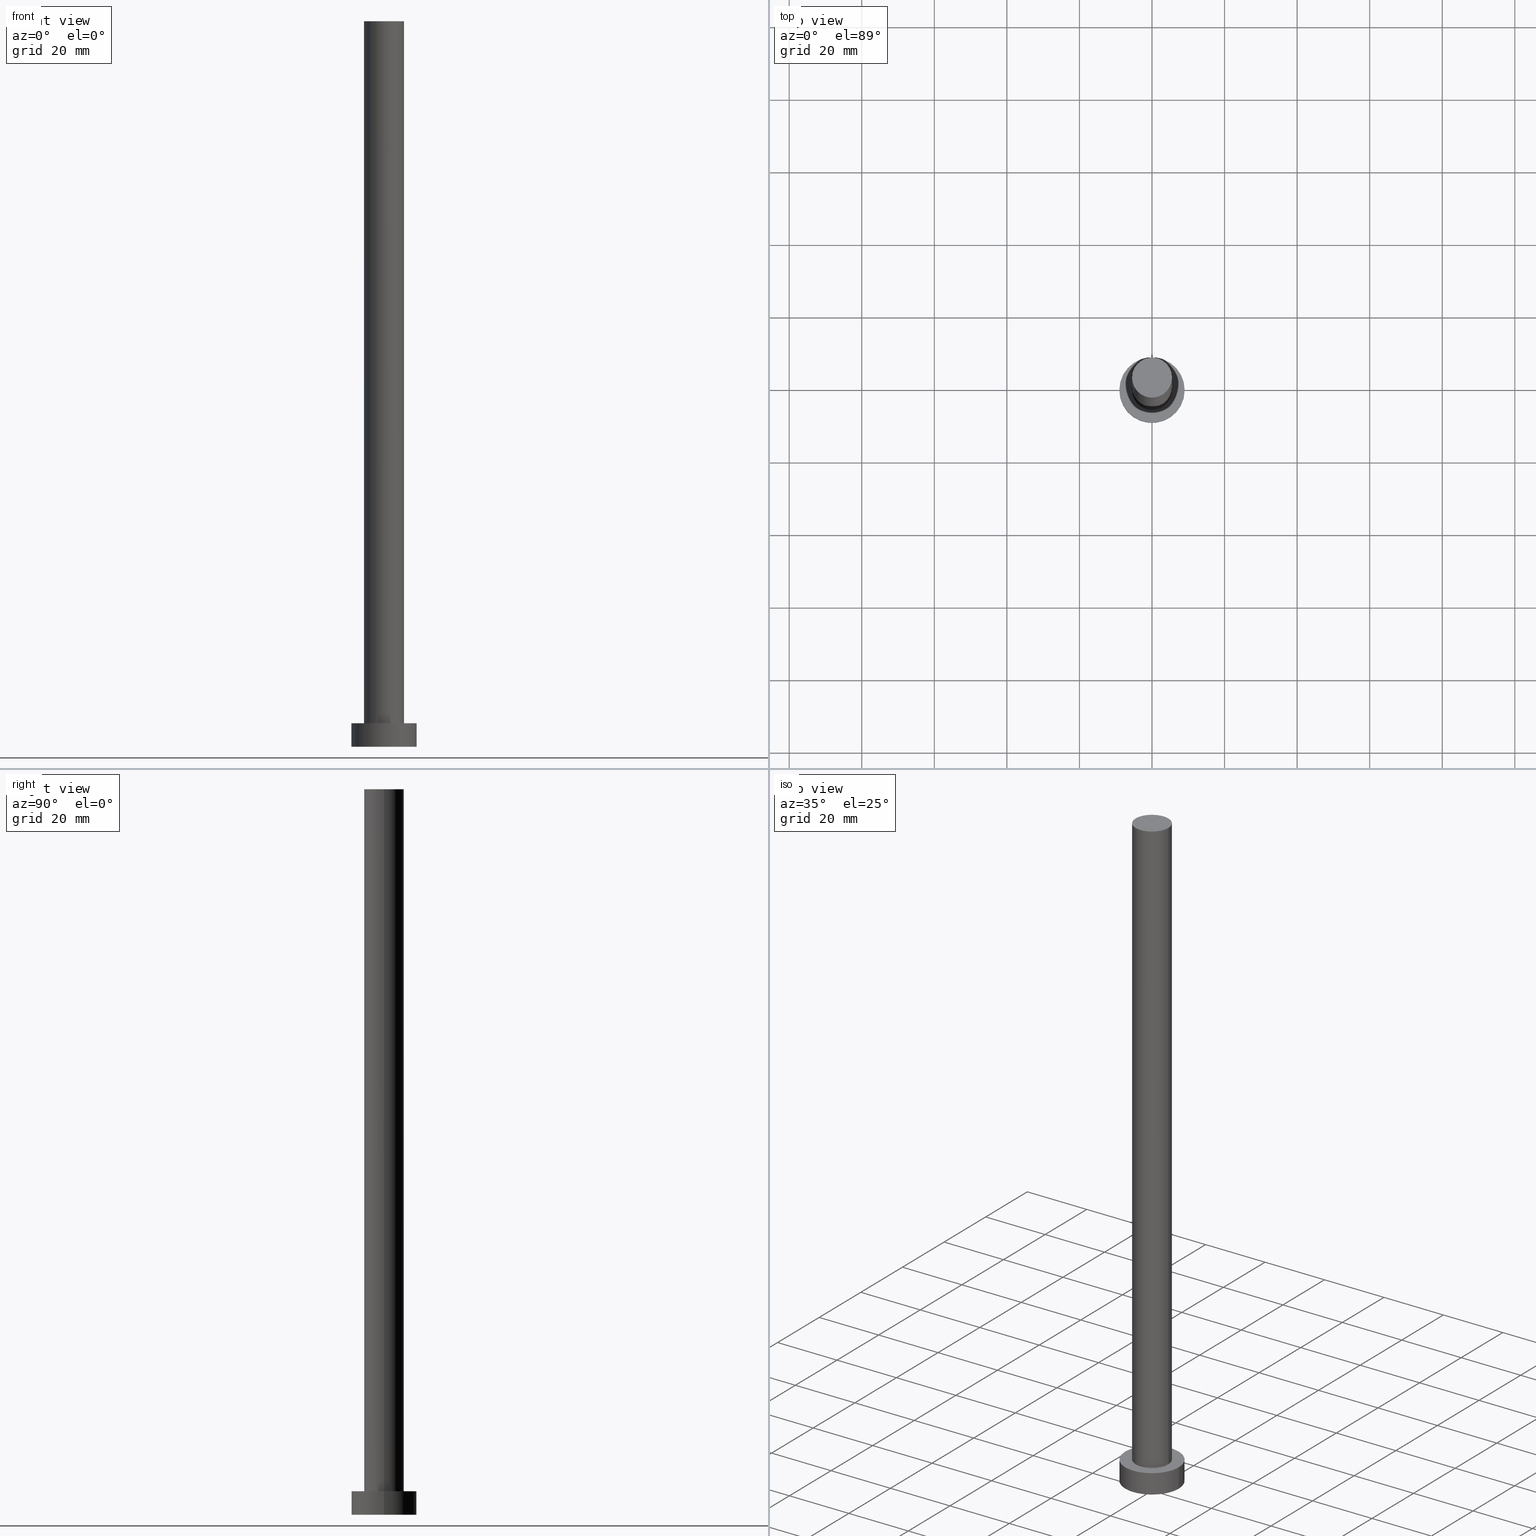
[diagram: canonical four-view strip — front | top / right | iso, engineering-drawing reading convention]
A machine part, canonical four-view strip (front | top / right | iso — engineering-drawing reading convention). The complete STEP part file that produces these views, byte-faithful:
ISO-10303-21;
HEADER;
FILE_DESCRIPTION (( 'STEP AP203' ),
    '1' );
FILE_NAME ('eee9.STEP',
    '2023-02-13T12:20:11',
    ( '' ),
    ( '' ),
    'SwSTEP 2.0',
    'SolidWorks 2019',
    '' );
FILE_SCHEMA (( 'CONFIG_CONTROL_DESIGN' ));
ENDSEC;

DATA;
#1 = DIRECTION ( 'NONE',  ( 0.000000000000000000, 0.000000000000000000, 1.000000000000000000 ) ) ;
#2 = DIRECTION ( 'NONE',  ( 1.000000000000000000, 0.000000000000000000, 0.000000000000000000 ) ) ;
#3 = DIRECTION ( 'NONE',  ( 0.000000000000000000, 0.000000000000000000, 1.000000000000000000 ) ) ;
#4 = AXIS2_PLACEMENT_3D ( 'NONE', #65, #107, #219 ) ;
#5 = DIRECTION ( 'NONE',  ( 0.000000000000000000, 0.000000000000000000, 1.000000000000000000 ) ) ;
#6 = ORIENTED_EDGE ( 'NONE', *, *, #152, .T. ) ;
#7 = ORIENTED_EDGE ( 'NONE', *, *, #56, .T. ) ;
#8 = APPROVAL_DATE_TIME ( #91, #182 ) ;
#9 = ORIENTED_EDGE ( 'NONE', *, *, #218, .F. ) ;
#10 = DIRECTION ( 'NONE',  ( -0.000000000000000000, -0.000000000000000000, -1.000000000000000000 ) ) ;
#11 = PRODUCT_RELATED_PRODUCT_CATEGORY ( 'detail', '', ( #168 ) ) ;
#12 = APPLICATION_CONTEXT ( 'configuration controlled 3d designs of mechanical parts and assemblies' ) ;
#13 = DATE_AND_TIME ( #97, #94 ) ;
#14 = ORIENTED_EDGE ( 'NONE', *, *, #218, .T. ) ;
#15 = DATE_AND_TIME ( #169, #45 ) ;
#16 = DIRECTION ( 'NONE',  ( -1.000000000000000000, 0.000000000000000000, 0.000000000000000000 ) ) ;
#17 = CARTESIAN_POINT ( 'NONE',  ( 0.000000000000000000, 0.000000000000000000, 200.0000000000000000 ) ) ;
#18 = APPROVAL_PERSON_ORGANIZATION ( #247, #182, #204 ) ;
#19 = CARTESIAN_POINT ( 'NONE',  ( 0.000000000000000000, 0.000000000000000000, 6.500000000000000000 ) ) ;
#20 = EDGE_CURVE ( 'NONE', #165, #248, #246, .T. ) ;
#21 = CARTESIAN_POINT ( 'NONE',  ( -5.500000000000000000, 0.000000000000000000, 200.0000000000000000 ) ) ;
#22 = CC_DESIGN_DATE_AND_TIME_ASSIGNMENT ( #95, #252, ( #244 ) ) ;
#23 = APPROVAL_STATUS ( 'not_yet_approved' ) ;
#24 = EDGE_LOOP ( 'NONE', ( #142, #62, #144, #235 ) ) ;
#25 = ORIENTED_EDGE ( 'NONE', *, *, #51, .F. ) ;
#26 = APPROVAL_PERSON_ORGANIZATION ( #148, #104, #149 ) ;
#27 = DIRECTION ( 'NONE',  ( 1.000000000000000000, 0.000000000000000000, 0.000000000000000000 ) ) ;
#28 = VERTEX_POINT ( 'NONE', #70 ) ;
#29 = CC_DESIGN_PERSON_AND_ORGANIZATION_ASSIGNMENT ( #55, #187, ( #244 ) ) ;
#30 = ORIENTED_EDGE ( 'NONE', *, *, #166, .T. ) ;
#31 = CARTESIAN_POINT ( 'NONE',  ( 0.000000000000000000, 0.000000000000000000, 0.000000000000000000 ) ) ;
#32 = EDGE_CURVE ( 'NONE', #93, #206, #106, .T. ) ;
#33 = FACE_OUTER_BOUND ( 'NONE', #87, .T. ) ;
#34 = DESIGN_CONTEXT ( 'detailed design', #12, 'design' ) ;
#35 = AXIS2_PLACEMENT_3D ( 'NONE', #120, #84, #2 ) ;
#36 = APPROVAL_PERSON_ORGANIZATION ( #57, #196, #74 ) ;
#37 = ADVANCED_FACE ( 'NONE', ( #129 ), #208, .F. ) ;
#38 =( NAMED_UNIT ( * ) SI_UNIT ( $, .STERADIAN. ) SOLID_ANGLE_UNIT ( ) );
#39 = CC_DESIGN_PERSON_AND_ORGANIZATION_ASSIGNMENT ( #118, #171, ( #255 ) ) ;
#40 = DIRECTION ( 'NONE',  ( 1.000000000000000000, 0.000000000000000000, -0.000000000000000000 ) ) ;
#41 = CIRCLE ( 'NONE', #211, 5.500000000000000000 ) ;
#42 = LINE ( 'NONE', #21, #215 ) ;
#43 = CYLINDRICAL_SURFACE ( 'NONE', #115, 5.500000000000000000 ) ;
#44 = FACE_OUTER_BOUND ( 'NONE', #163, .T. ) ;
#45 = LOCAL_TIME ( 13, 20, 11.00000000000000000, #133 ) ;
#46 = APPLICATION_PROTOCOL_DEFINITION ( 'international standard', 'config_control_design', 1994, #12 ) ;
#47 = CIRCLE ( 'NONE', #243, 9.000000000000000000 ) ;
#48 = ORIENTED_EDGE ( 'NONE', *, *, #32, .F. ) ;
#49 = AXIS2_PLACEMENT_3D ( 'NONE', #19, #176, #64 ) ;
#50 = DIRECTION ( 'NONE',  ( 1.000000000000000000, 0.000000000000000000, 0.000000000000000000 ) ) ;
#51 = EDGE_CURVE ( 'NONE', #93, #242, #150, .T. ) ;
#52 = APPROVAL_STATUS ( 'not_yet_approved' ) ;
#53 = AXIS2_PLACEMENT_3D ( 'NONE', #143, #222, #27 ) ;
#54 = DIRECTION ( 'NONE',  ( -0.000000000000000000, -0.000000000000000000, -1.000000000000000000 ) ) ;
#55 = PERSON_AND_ORGANIZATION ( #180, #205 ) ;
#56 = EDGE_CURVE ( 'NONE', #242, #28, #47, .T. ) ;
#57 = PERSON_AND_ORGANIZATION ( #180, #205 ) ;
#58 = CARTESIAN_POINT ( 'NONE',  ( 0.000000000000000000, 0.000000000000000000, 6.500000000000000000 ) ) ;
#59 = LOCAL_TIME ( 13, 20, 11.00000000000000000, #125 ) ;
#60 =( LENGTH_UNIT ( ) NAMED_UNIT ( * ) SI_UNIT ( .MILLI., .METRE. ) );
#61 = CARTESIAN_POINT ( 'NONE',  ( 5.500000000000000000, 6.735557395310442023E-16, 6.500000000000000000 ) ) ;
#62 = ORIENTED_EDGE ( 'NONE', *, *, #132, .F. ) ;
#63 = CLOSED_SHELL ( 'NONE', ( #201, #77, #225, #250, #37, #157, #88 ) ) ;
#64 = DIRECTION ( 'NONE',  ( -1.000000000000000000, 0.000000000000000000, 0.000000000000000000 ) ) ;
#65 = CARTESIAN_POINT ( 'NONE',  ( 0.000000000000000000, 0.000000000000000000, 0.000000000000000000 ) ) ;
#66 = VERTEX_POINT ( 'NONE', #99 ) ;
#67 = CARTESIAN_POINT ( 'NONE',  ( 9.000000000000000000, 1.102182119232617517E-15, 6.500000000000000000 ) ) ;
#68 = PERSON_AND_ORGANIZATION_ROLE ( 'creator' ) ;
#69 = EDGE_CURVE ( 'NONE', #206, #93, #188, .T. ) ;
#70 = CARTESIAN_POINT ( 'NONE',  ( 9.000000000000000000, 1.102182119232617517E-15, 0.000000000000000000 ) ) ;
#71 = APPLICATION_CONTEXT ( 'configuration controlled 3d designs of mechanical parts and assemblies' ) ;
#72 = CC_DESIGN_APPROVAL ( #196, ( #244 ) ) ;
#73 = ORIENTED_EDGE ( 'NONE', *, *, #69, .F. ) ;
#74 = APPROVAL_ROLE ( '' ) ;
#75 = AXIS2_PLACEMENT_3D ( 'NONE', #233, #236, #137 ) ;
#76 = DIRECTION ( 'NONE',  ( 0.000000000000000000, 0.000000000000000000, 1.000000000000000000 ) ) ;
#77 = ADVANCED_FACE ( 'NONE', ( #191 ), #119, .T. ) ;
#78 = SHAPE_DEFINITION_REPRESENTATION ( #178, #209 ) ;
#79 = AXIS2_PLACEMENT_3D ( 'NONE', #81, #5, #40 ) ;
#80 = DIRECTION ( 'NONE',  ( -0.000000000000000000, -0.000000000000000000, -1.000000000000000000 ) ) ;
#81 = CARTESIAN_POINT ( 'NONE',  ( 0.000000000000000000, 0.000000000000000000, 200.0000000000000000 ) ) ;
#82 = PLANE ( 'NONE',  #75 ) ;
#83 = AXIS2_PLACEMENT_3D ( 'NONE', #228, #54, #16 ) ;
#84 = DIRECTION ( 'NONE',  ( 0.000000000000000000, 0.000000000000000000, 1.000000000000000000 ) ) ;
#85 = CC_DESIGN_APPROVAL ( #182, ( #110 ) ) ;
#86 = DIRECTION ( 'NONE',  ( -1.000000000000000000, 0.000000000000000000, 0.000000000000000000 ) ) ;
#87 = EDGE_LOOP ( 'NONE', ( #202, #6 ) ) ;
#88 = ADVANCED_FACE ( 'NONE', ( #33 ), #177, .T. ) ;
#89 = PERSON_AND_ORGANIZATION ( #180, #205 ) ;
#90 = ORIENTED_EDGE ( 'NONE', *, *, #51, .T. ) ;
#91 = DATE_AND_TIME ( #241, #59 ) ;
#92 = CARTESIAN_POINT ( 'NONE',  ( 0.000000000000000000, 0.000000000000000000, 6.500000000000000000 ) ) ;
#93 = VERTEX_POINT ( 'NONE', #105 ) ;
#94 = LOCAL_TIME ( 13, 20, 11.00000000000000000, #226 ) ;
#95 = DATE_AND_TIME ( #114, #131 ) ;
#96 = DIRECTION ( 'NONE',  ( 0.000000000000000000, 0.000000000000000000, 1.000000000000000000 ) ) ;
#97 = CALENDAR_DATE ( 2023, 13, 2 ) ;
#98 = DIRECTION ( 'NONE',  ( 1.000000000000000000, 0.000000000000000000, 0.000000000000000000 ) ) ;
#99 = CARTESIAN_POINT ( 'NONE',  ( -5.500000000000000000, 0.000000000000000000, 200.0000000000000000 ) ) ;
#100 = VECTOR ( 'NONE', #103, 1000.000000000000000 ) ;
#101 = CIRCLE ( 'NONE', #4, 9.000000000000000000 ) ;
#102 = PERSON_AND_ORGANIZATION_ROLE ( 'creator' ) ;
#103 = DIRECTION ( 'NONE',  ( -0.000000000000000000, -0.000000000000000000, -1.000000000000000000 ) ) ;
#104 = APPROVAL ( #52, 'NEUR�EN�' ) ;
#105 = CARTESIAN_POINT ( 'NONE',  ( -9.000000000000000000, 0.000000000000000000, 6.500000000000000000 ) ) ;
#106 = CIRCLE ( 'NONE', #109, 9.000000000000000000 ) ;
#107 = DIRECTION ( 'NONE',  ( 0.000000000000000000, 0.000000000000000000, 1.000000000000000000 ) ) ;
#108 = DIRECTION ( 'NONE',  ( 0.000000000000000000, 0.000000000000000000, 1.000000000000000000 ) ) ;
#109 = AXIS2_PLACEMENT_3D ( 'NONE', #92, #251, #50 ) ;
#110 = PRODUCT_DEFINITION ( 'NEZN�M�', '', #255, #34 ) ;
#111 = EDGE_LOOP ( 'NONE', ( #223, #48, #90, #7 ) ) ;
#112 = ORIENTED_EDGE ( 'NONE', *, *, #69, .T. ) ;
#113 = CC_DESIGN_PERSON_AND_ORGANIZATION_ASSIGNMENT ( #231, #102, ( #255 ) ) ;
#114 = CALENDAR_DATE ( 2023, 13, 2 ) ;
#115 = AXIS2_PLACEMENT_3D ( 'NONE', #158, #155, #86 ) ;
#116 = ORIENTED_EDGE ( 'NONE', *, *, #238, .F. ) ;
#117 = CIRCLE ( 'NONE', #145, 5.500000000000000000 ) ;
#118 = PERSON_AND_ORGANIZATION ( #180, #205 ) ;
#119 = CYLINDRICAL_SURFACE ( 'NONE', #83, 9.000000000000000000 ) ;
#120 = CARTESIAN_POINT ( 'NONE',  ( 0.000000000000000000, 0.000000000000000000, 200.0000000000000000 ) ) ;
#121 = CARTESIAN_POINT ( 'NONE',  ( 9.000000000000000000, 1.102182119232617517E-15, 6.500000000000000000 ) ) ;
#122 = CIRCLE ( 'NONE', #35, 5.500000000000000000 ) ;
#123 = FACE_OUTER_BOUND ( 'NONE', #111, .T. ) ;
#124 = ORIENTED_EDGE ( 'NONE', *, *, #212, .F. ) ;
#125 = COORDINATED_UNIVERSAL_TIME_OFFSET ( 1, 0, .AHEAD. ) ;
#126 = EDGE_LOOP ( 'NONE', ( #167, #128 ) ) ;
#127 = CIRCLE ( 'NONE', #153, 5.500000000000000000 ) ;
#128 = ORIENTED_EDGE ( 'NONE', *, *, #186, .F. ) ;
#129 = FACE_OUTER_BOUND ( 'NONE', #126, .T. ) ;
#130 = APPROVAL_DATE_TIME ( #15, #196 ) ;
#131 = LOCAL_TIME ( 13, 20, 11.00000000000000000, #253 ) ;
#132 = EDGE_CURVE ( 'NONE', #66, #165, #117, .T. ) ;
#133 = COORDINATED_UNIVERSAL_TIME_OFFSET ( 1, 0, .AHEAD. ) ;
#134 = DIRECTION ( 'NONE',  ( 0.000000000000000000, 0.000000000000000000, 1.000000000000000000 ) ) ;
#135 = DIRECTION ( 'NONE',  ( 1.000000000000000000, 0.000000000000000000, 0.000000000000000000 ) ) ;
#136 = EDGE_LOOP ( 'NONE', ( #183, #112 ) ) ;
#137 = DIRECTION ( 'NONE',  ( 1.000000000000000000, 0.000000000000000000, -0.000000000000000000 ) ) ;
#138 = CARTESIAN_POINT ( 'NONE',  ( 0.000000000000000000, 0.000000000000000000, 200.0000000000000000 ) ) ;
#139 = CYLINDRICAL_SURFACE ( 'NONE', #49, 9.000000000000000000 ) ;
#140 = CC_DESIGN_PERSON_AND_ORGANIZATION_ASSIGNMENT ( #221, #199, ( #168 ) ) ;
#141 = COORDINATED_UNIVERSAL_TIME_OFFSET ( 1, 0, .AHEAD. ) ;
#142 = ORIENTED_EDGE ( 'NONE', *, *, #20, .F. ) ;
#143 = CARTESIAN_POINT ( 'NONE',  ( 0.000000000000000000, 0.000000000000000000, 0.000000000000000000 ) ) ;
#144 = ORIENTED_EDGE ( 'NONE', *, *, #212, .T. ) ;
#145 = AXIS2_PLACEMENT_3D ( 'NONE', #17, #3, #135 ) ;
#146 = CC_DESIGN_APPROVAL ( #104, ( #255 ) ) ;
#147 = ORIENTED_EDGE ( 'NONE', *, *, #152, .F. ) ;
#148 = PERSON_AND_ORGANIZATION ( #180, #205 ) ;
#149 = APPROVAL_ROLE ( '' ) ;
#150 = LINE ( 'NONE', #232, #100 ) ;
#151 = DATE_TIME_ROLE ( 'creation_date' ) ;
#152 = EDGE_CURVE ( 'NONE', #165, #66, #122, .T. ) ;
#153 = AXIS2_PLACEMENT_3D ( 'NONE', #154, #108, #193 ) ;
#154 = CARTESIAN_POINT ( 'NONE',  ( 0.000000000000000000, 0.000000000000000000, 6.500000000000000000 ) ) ;
#155 = DIRECTION ( 'NONE',  ( -0.000000000000000000, -0.000000000000000000, -1.000000000000000000 ) ) ;
#156 = EDGE_LOOP ( 'NONE', ( #116, #9 ) ) ;
#157 = ADVANCED_FACE ( 'NONE', ( #239 ), #43, .T. ) ;
#158 = CARTESIAN_POINT ( 'NONE',  ( 0.000000000000000000, 0.000000000000000000, 200.0000000000000000 ) ) ;
#159 = VECTOR ( 'NONE', #10, 1000.000000000000000 ) ;
#160 =( NAMED_UNIT ( * ) PLANE_ANGLE_UNIT ( ) SI_UNIT ( $, .RADIAN. ) );
#161 = MANIFOLD_SOLID_BREP ( 'P�idat vysunut�m3', #63 ) ;
#162 =( GEOMETRIC_REPRESENTATION_CONTEXT ( 3 ) GLOBAL_UNCERTAINTY_ASSIGNED_CONTEXT ( ( #172 ) ) GLOBAL_UNIT_ASSIGNED_CONTEXT ( ( #60, #160, #38 ) ) REPRESENTATION_CONTEXT ( 'NONE', 'WORKASPACE' ) );
#163 = EDGE_LOOP ( 'NONE', ( #147, #184, #14, #124 ) ) ;
#164 = CALENDAR_DATE ( 2023, 13, 2 ) ;
#165 = VERTEX_POINT ( 'NONE', #214 ) ;
#166 = EDGE_CURVE ( 'NONE', #206, #28, #216, .T. ) ;
#167 = ORIENTED_EDGE ( 'NONE', *, *, #56, .F. ) ;
#168 = PRODUCT ( 'eee9', 'eee9', '', ( #245 ) ) ;
#169 = CALENDAR_DATE ( 2023, 13, 2 ) ;
#170 = SECURITY_CLASSIFICATION_LEVEL ( 'unclassified' ) ;
#171 = PERSON_AND_ORGANIZATION_ROLE ( 'design_supplier' ) ;
#172 = UNCERTAINTY_MEASURE_WITH_UNIT (LENGTH_MEASURE( 1.000000000000000082E-05 ), #60, 'distance_accuracy_value', 'NONE');
#173 = DIRECTION ( 'NONE',  ( -0.000000000000000000, -0.000000000000000000, -1.000000000000000000 ) ) ;
#174 = DIRECTION ( 'NONE',  ( 1.000000000000000000, 0.000000000000000000, 0.000000000000000000 ) ) ;
#175 = FACE_BOUND ( 'NONE', #156, .T. ) ;
#176 = DIRECTION ( 'NONE',  ( -0.000000000000000000, -0.000000000000000000, -1.000000000000000000 ) ) ;
#177 = PLANE ( 'NONE',  #79 ) ;
#178 = PRODUCT_DEFINITION_SHAPE ( 'NONE', 'NONE',  #110 ) ;
#179 = EDGE_LOOP ( 'NONE', ( #73, #30, #200, #25 ) ) ;
#180 = PERSON ( 'NEUR�EN�', 'NEUR�EN�', 'NEUR�EN�', ('NEUR�EN�'), ('NEUR�EN�'), ('NEUR�EN�') ) ;
#181 = CC_DESIGN_SECURITY_CLASSIFICATION ( #244, ( #255 ) ) ;
#182 = APPROVAL ( #23, 'NEUR�EN�' ) ;
#183 = ORIENTED_EDGE ( 'NONE', *, *, #32, .T. ) ;
#184 = ORIENTED_EDGE ( 'NONE', *, *, #20, .T. ) ;
#185 = AXIS2_PLACEMENT_3D ( 'NONE', #58, #134, #98 ) ;
#186 = EDGE_CURVE ( 'NONE', #28, #242, #101, .T. ) ;
#187 = PERSON_AND_ORGANIZATION_ROLE ( 'classification_officer' ) ;
#188 = CIRCLE ( 'NONE', #185, 9.000000000000000000 ) ;
#189 = DIRECTION ( 'NONE',  ( 1.000000000000000000, 0.000000000000000000, -0.000000000000000000 ) ) ;
#190 = CC_DESIGN_PERSON_AND_ORGANIZATION_ASSIGNMENT ( #89, #68, ( #110 ) ) ;
#191 = FACE_OUTER_BOUND ( 'NONE', #179, .T. ) ;
#192 = CC_DESIGN_DATE_AND_TIME_ASSIGNMENT ( #220, #151, ( #110 ) ) ;
#193 = DIRECTION ( 'NONE',  ( 1.000000000000000000, 0.000000000000000000, 0.000000000000000000 ) ) ;
#194 = CARTESIAN_POINT ( 'NONE',  ( 0.000000000000000000, 0.000000000000000000, 6.500000000000000000 ) ) ;
#195 = CARTESIAN_POINT ( 'NONE',  ( -9.000000000000000000, 0.000000000000000000, 0.000000000000000000 ) ) ;
#196 = APPROVAL ( #229, 'NEUR�EN�' ) ;
#197 = LOCAL_TIME ( 13, 20, 11.00000000000000000, #141 ) ;
#198 = FACE_OUTER_BOUND ( 'NONE', #136, .T. ) ;
#199 = PERSON_AND_ORGANIZATION_ROLE ( 'design_owner' ) ;
#200 = ORIENTED_EDGE ( 'NONE', *, *, #186, .T. ) ;
#201 = ADVANCED_FACE ( 'NONE', ( #44 ), #240, .T. ) ;
#202 = ORIENTED_EDGE ( 'NONE', *, *, #132, .T. ) ;
#203 = AXIS2_PLACEMENT_3D ( 'NONE', #31, #96, #189 ) ;
#204 = APPROVAL_ROLE ( '' ) ;
#205 = ORGANIZATION ( 'NEUR�EN�', 'NEUR�EN�', '' ) ;
#206 = VERTEX_POINT ( 'NONE', #67 ) ;
#207 = APPLICATION_PROTOCOL_DEFINITION ( 'international standard', 'config_control_design', 1994, #71 ) ;
#208 = PLANE ( 'NONE',  #203 ) ;
#209 = ADVANCED_BREP_SHAPE_REPRESENTATION ( 'eee9', ( #161, #53 ), #162 ) ;
#210 = DIRECTION ( 'NONE',  ( 1.000000000000000000, 0.000000000000000000, 0.000000000000000000 ) ) ;
#211 = AXIS2_PLACEMENT_3D ( 'NONE', #194, #1, #174 ) ;
#212 = EDGE_CURVE ( 'NONE', #66, #213, #42, .T. ) ;
#213 = VERTEX_POINT ( 'NONE', #217 ) ;
#214 = CARTESIAN_POINT ( 'NONE',  ( 5.500000000000000000, 6.735557395310442023E-16, 200.0000000000000000 ) ) ;
#215 = VECTOR ( 'NONE', #80, 1000.000000000000000 ) ;
#216 = LINE ( 'NONE', #121, #249 ) ;
#217 = CARTESIAN_POINT ( 'NONE',  ( -5.500000000000000000, 0.000000000000000000, 6.500000000000000000 ) ) ;
#218 = EDGE_CURVE ( 'NONE', #248, #213, #41, .T. ) ;
#219 = DIRECTION ( 'NONE',  ( 1.000000000000000000, 0.000000000000000000, 0.000000000000000000 ) ) ;
#220 = DATE_AND_TIME ( #164, #197 ) ;
#221 = PERSON_AND_ORGANIZATION ( #180, #205 ) ;
#222 = DIRECTION ( 'NONE',  ( 0.000000000000000000, 0.000000000000000000, 1.000000000000000000 ) ) ;
#223 = ORIENTED_EDGE ( 'NONE', *, *, #166, .F. ) ;
#224 = CARTESIAN_POINT ( 'NONE',  ( 5.500000000000000000, 6.735557395310442023E-16, 200.0000000000000000 ) ) ;
#225 = ADVANCED_FACE ( 'NONE', ( #123 ), #139, .T. ) ;
#226 = COORDINATED_UNIVERSAL_TIME_OFFSET ( 1, 0, .AHEAD. ) ;
#227 = APPROVAL_DATE_TIME ( #13, #104 ) ;
#228 = CARTESIAN_POINT ( 'NONE',  ( 0.000000000000000000, 0.000000000000000000, 6.500000000000000000 ) ) ;
#229 = APPROVAL_STATUS ( 'not_yet_approved' ) ;
#230 = CARTESIAN_POINT ( 'NONE',  ( 0.000000000000000000, 0.000000000000000000, 0.000000000000000000 ) ) ;
#231 = PERSON_AND_ORGANIZATION ( #180, #205 ) ;
#232 = CARTESIAN_POINT ( 'NONE',  ( -9.000000000000000000, 0.000000000000000000, 6.500000000000000000 ) ) ;
#233 = CARTESIAN_POINT ( 'NONE',  ( 0.000000000000000000, 0.000000000000000000, 6.500000000000000000 ) ) ;
#234 = DIRECTION ( 'NONE',  ( -0.000000000000000000, -0.000000000000000000, -1.000000000000000000 ) ) ;
#235 = ORIENTED_EDGE ( 'NONE', *, *, #238, .T. ) ;
#236 = DIRECTION ( 'NONE',  ( 0.000000000000000000, 0.000000000000000000, 1.000000000000000000 ) ) ;
#237 = AXIS2_PLACEMENT_3D ( 'NONE', #138, #173, #254 ) ;
#238 = EDGE_CURVE ( 'NONE', #213, #248, #127, .T. ) ;
#239 = FACE_OUTER_BOUND ( 'NONE', #24, .T. ) ;
#240 = CYLINDRICAL_SURFACE ( 'NONE', #237, 5.500000000000000000 ) ;
#241 = CALENDAR_DATE ( 2023, 13, 2 ) ;
#242 = VERTEX_POINT ( 'NONE', #195 ) ;
#243 = AXIS2_PLACEMENT_3D ( 'NONE', #230, #76, #210 ) ;
#244 = SECURITY_CLASSIFICATION ( '', '', #170 ) ;
#245 = MECHANICAL_CONTEXT ( 'NONE', #71, 'mechanical' ) ;
#246 = LINE ( 'NONE', #224, #159 ) ;
#247 = PERSON_AND_ORGANIZATION ( #180, #205 ) ;
#248 = VERTEX_POINT ( 'NONE', #61 ) ;
#249 = VECTOR ( 'NONE', #234, 1000.000000000000000 ) ;
#250 = ADVANCED_FACE ( 'NONE', ( #175, #198 ), #82, .T. ) ;
#251 = DIRECTION ( 'NONE',  ( 0.000000000000000000, 0.000000000000000000, 1.000000000000000000 ) ) ;
#252 = DATE_TIME_ROLE ( 'classification_date' ) ;
#253 = COORDINATED_UNIVERSAL_TIME_OFFSET ( 1, 0, .AHEAD. ) ;
#254 = DIRECTION ( 'NONE',  ( -1.000000000000000000, 0.000000000000000000, 0.000000000000000000 ) ) ;
#255 = PRODUCT_DEFINITION_FORMATION_WITH_SPECIFIED_SOURCE ( 'LIBOVOLN�', '', #168, .NOT_KNOWN. ) ;
ENDSEC;
END-ISO-10303-21;
